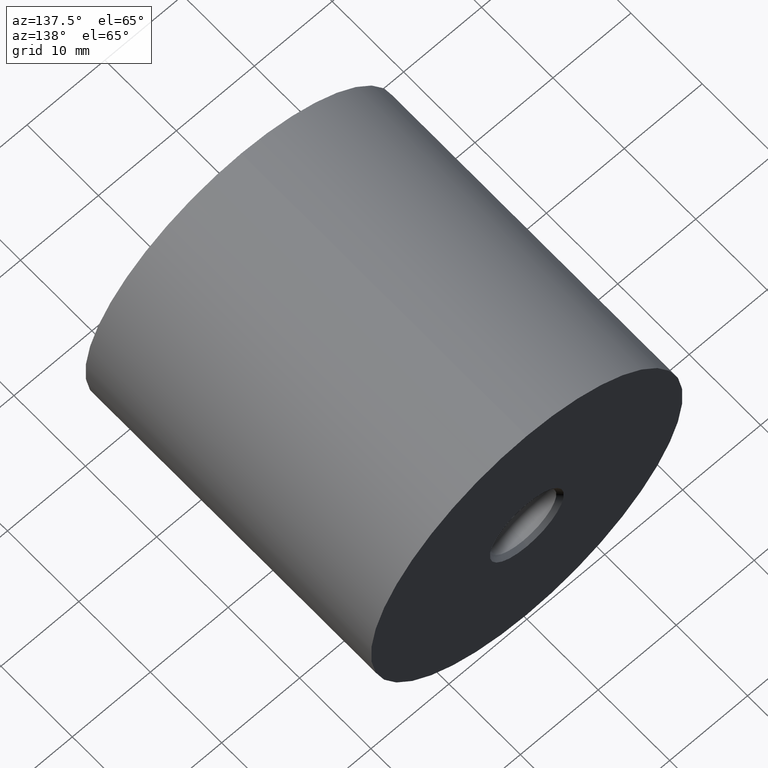
[diagram: clean part render]
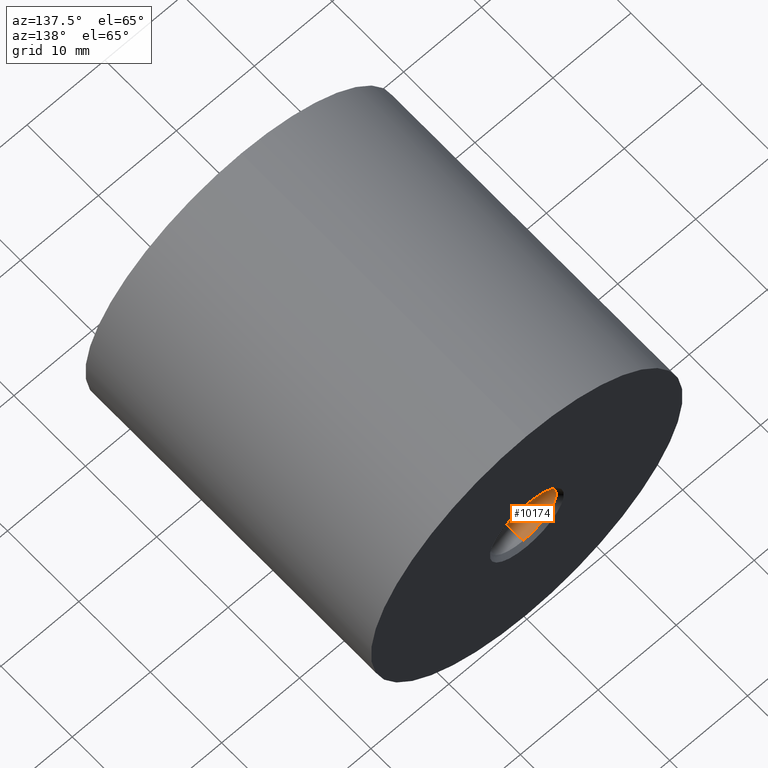
[diagram: same view with one face highlighted and labeled with its STEP entity id]
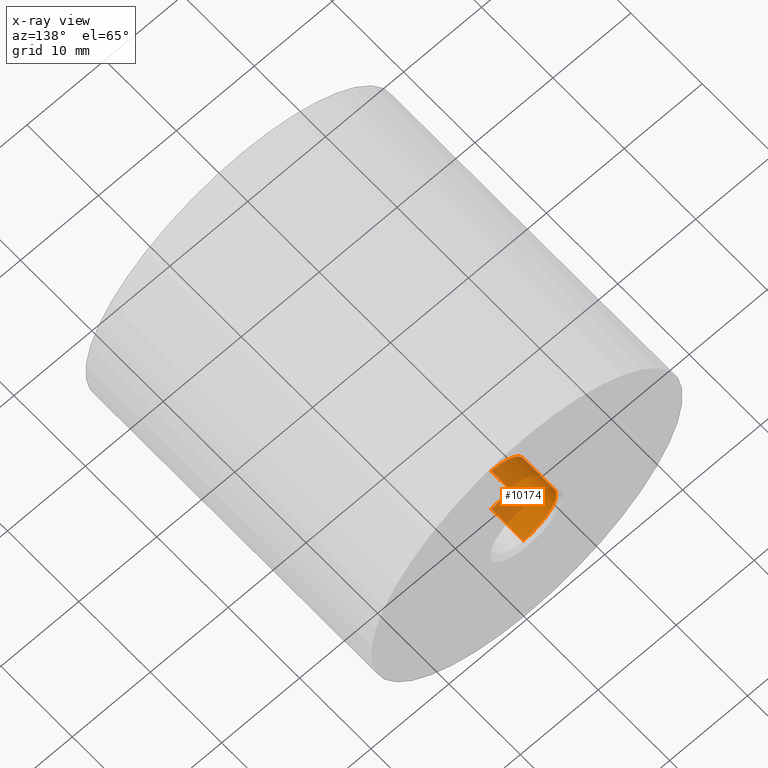
[diagram: x-ray of the same camera — body ghosted, the highlighted face saturated]
A machine part, auxiliary view. The second image highlights one B-rep face of the part: STEP entity #10174.
The next image is the same camera in x-ray: the body ghosted, the highlighted face saturated — about 44% of this face is hidden behind the body in this view.
In plain terms, the highlighted cylindrical surface (partial cylindrical patch) has radius 4.25 mm, axis along (-0, 1, -0).
Its self-contained STEP definition (entity closure, byte-faithful):
#807 = VECTOR ( 'NONE', #826, 1000.000000000000000 ) ;
#826 = DIRECTION ( 'NONE',  ( -0.000000000000000000, 1.000000000000000000, -0.000000000000000000 ) ) ;
#844 = DIRECTION ( 'NONE',  ( -0.000000000000000000, 1.000000000000000000, -0.000000000000000000 ) ) ;
#869 = CARTESIAN_POINT ( 'NONE',  ( 5.204748896376253657E-16, 40.00000000000000000, -4.250000000000001776 ) ) ;
#2300 = EDGE_CURVE ( 'NONE', #10452, #6723, #2681, .T. ) ;
#2681 = LINE ( 'NONE', #7193, #14599 ) ;
#2878 = ORIENTED_EDGE ( 'NONE', *, *, #2300, .F. ) ;
#2949 = EDGE_CURVE ( 'NONE', #3521, #10633, #6933, .T. ) ;
#3521 = VERTEX_POINT ( 'NONE', #4158 ) ;
#3591 = AXIS2_PLACEMENT_3D ( 'NONE', #11989, #4729, #12043 ) ;
#3801 = DIRECTION ( 'NONE',  ( 0.000000000000000000, 0.000000000000000000, 1.000000000000000000 ) ) ;
#4158 = CARTESIAN_POINT ( 'NONE',  ( 5.204748896376253657E-16, 35.00000000000000000, -4.250000000000001776 ) ) ;
#4359 = CARTESIAN_POINT ( 'NONE',  ( 0.000000000000000000, 35.00000000000000000, 4.250000000000001776 ) ) ;
#4729 = DIRECTION ( 'NONE',  ( -0.000000000000000000, 1.000000000000000000, -0.000000000000000000 ) ) ;
#5853 = DIRECTION ( 'NONE',  ( -0.000000000000000000, 1.000000000000000000, -0.000000000000000000 ) ) ;
#6144 = CARTESIAN_POINT ( 'NONE',  ( 0.000000000000000000, 35.00000000000000000, 0.000000000000000000 ) ) ;
#6723 = VERTEX_POINT ( 'NONE', #13743 ) ;
#6933 = LINE ( 'NONE', #869, #807 ) ;
#7193 = CARTESIAN_POINT ( 'NONE',  ( 0.000000000000000000, 40.00000000000000000, 4.250000000000001776 ) ) ;
#8308 = CARTESIAN_POINT ( 'NONE',  ( 5.510910596163096458E-16, 39.50000000000000000, -4.250000000000004441 ) ) ;
#9826 = ORIENTED_EDGE ( 'NONE', *, *, #2949, .T. ) ;
#10174 = ADVANCED_FACE ( 'NONE', ( #11270 ), #13734, .F. ) ;
#10265 = AXIS2_PLACEMENT_3D ( 'NONE', #6144, #13410, #3801 ) ;
#10452 = VERTEX_POINT ( 'NONE', #4359 ) ;
#10633 = VERTEX_POINT ( 'NONE', #8308 ) ;
#11261 = CIRCLE ( 'NONE', #10265, 4.250000000000001776 ) ;
#11270 = FACE_OUTER_BOUND ( 'NONE', #12520, .T. ) ;
#11392 = DIRECTION ( 'NONE',  ( 0.000000000000000000, 0.000000000000000000, 1.000000000000000000 ) ) ;
#11618 = AXIS2_PLACEMENT_3D ( 'NONE', #14934, #844, #11392 ) ;
#11926 = EDGE_CURVE ( 'NONE', #3521, #10452, #11261, .T. ) ;
#11989 = CARTESIAN_POINT ( 'NONE',  ( 0.000000000000000000, 39.50000000000000000, 0.000000000000000000 ) ) ;
#12043 = DIRECTION ( 'NONE',  ( 0.000000000000000000, 0.000000000000000000, 1.000000000000000000 ) ) ;
#12520 = EDGE_LOOP ( 'NONE', ( #14026, #9826, #14200, #2878 ) ) ;
#13410 = DIRECTION ( 'NONE',  ( -0.000000000000000000, 1.000000000000000000, -0.000000000000000000 ) ) ;
#13734 = CYLINDRICAL_SURFACE ( 'NONE', #11618, 4.250000000000001776 ) ;
#13743 = CARTESIAN_POINT ( 'NONE',  ( 0.000000000000000000, 39.50000000000000000, 4.250000000000004441 ) ) ;
#13966 = EDGE_CURVE ( 'NONE', #10633, #6723, #14049, .T. ) ;
#14026 = ORIENTED_EDGE ( 'NONE', *, *, #11926, .F. ) ;
#14049 = CIRCLE ( 'NONE', #3591, 4.250000000000004441 ) ;
#14200 = ORIENTED_EDGE ( 'NONE', *, *, #13966, .T. ) ;
#14599 = VECTOR ( 'NONE', #5853, 1000.000000000000000 ) ;
#14934 = CARTESIAN_POINT ( 'NONE',  ( 0.000000000000000000, 40.00000000000000000, 0.000000000000000000 ) ) ;